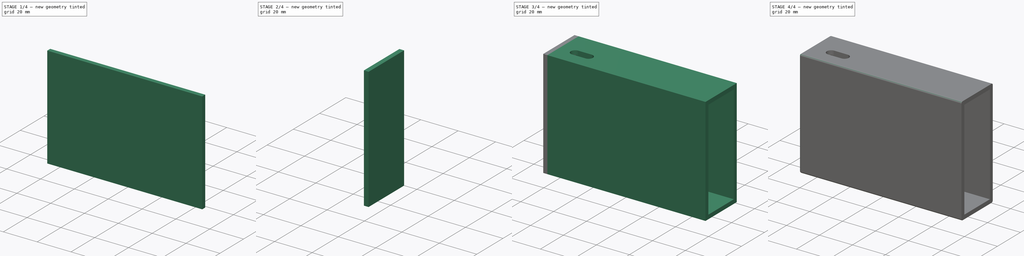
[diagram: build sequence overview — one tinted view per stage of 4, left to right]
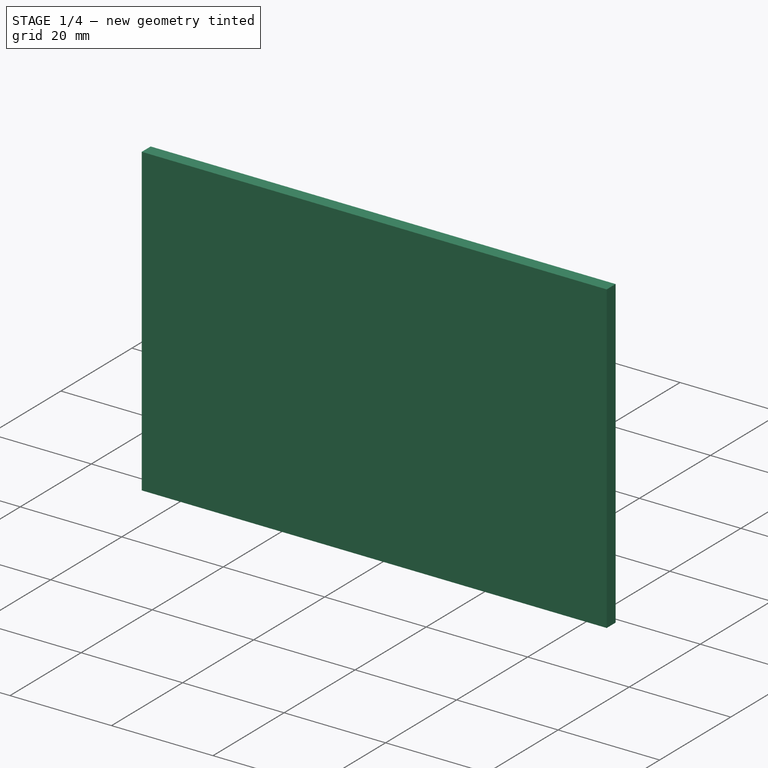
[diagram: stage 1 of 4 — iso view after this stage's code; geometry added in this stage tinted green]
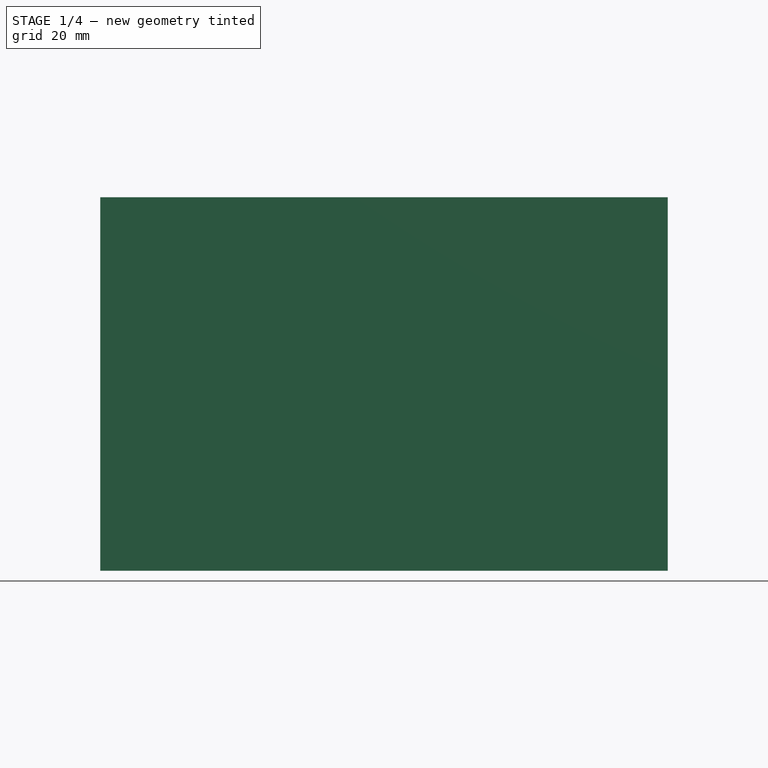
[diagram: stage 1 of 4 — front view after this stage's code; geometry added in this stage tinted green]
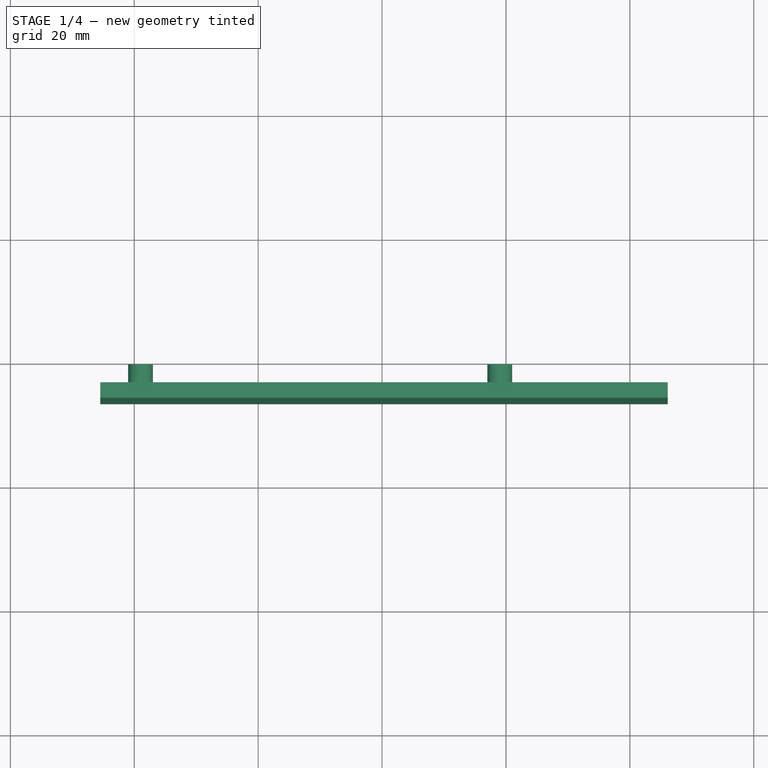
[diagram: stage 1 of 4 — top view after this stage's code; geometry added in this stage tinted green]
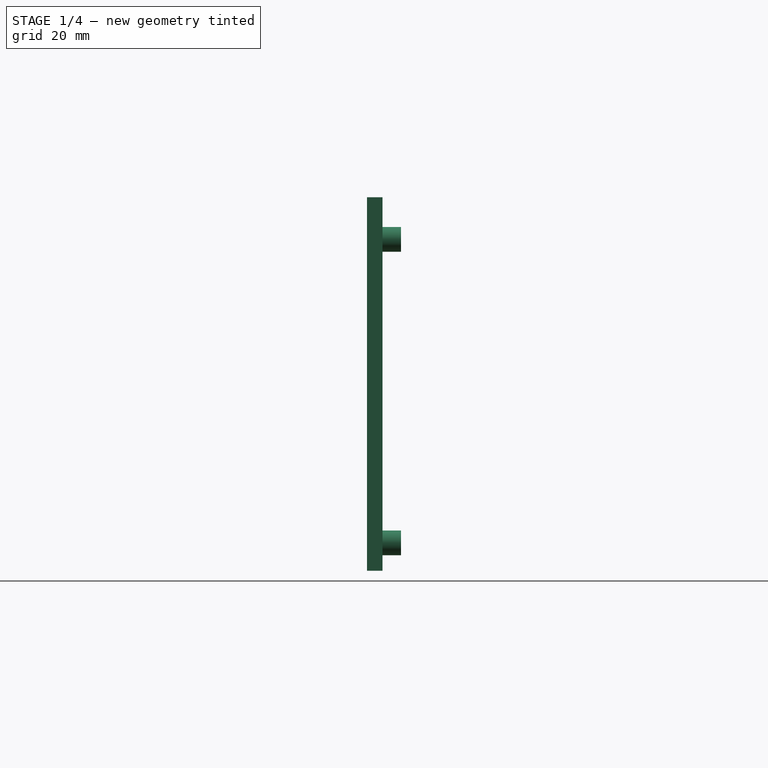
[diagram: stage 1 of 4 — right view after this stage's code; geometry added in this stage tinted green]
FCSTD DOCUMENT  (FreeCAD 0.15R4671 (Git))
Label: PiCaseShell_AllSteps
License: All rights reserved
LicenseURL: http://en.wikipedia.org/wiki/All_rights_reserved
objects: Part::Feature×53, Sketcher::SketchObject×8, PartDesign::Pad×5, PartDesign::Pocket×2, Part::Box×1, Part::Extrusion×1, PartDesign::Fillet×1
note: 78 computed .brp shape members not serialized (recipe doc carries the construction recipe); baked Part::Feature solids carry a one-line shape summary decoded from their .brp

FEATURE [Part::Feature] Part__Feature  label="Mainboard2"
  shape: bbox 85 x 1.3 x 56 mm, 18 faces (baked)
FEATURE [Part::Feature] Part__Feature001  label="GPIO"
  Placement = pos=(-11.37,0,-24.5) rot=(0,-1,0;1.5708rad)
  shape: bbox 50.8 x 11.5 x 5 mm, 684 faces (baked)
FEATURE [Part::Feature] Part__Feature002  label="Processor"
  Placement = pos=(-15.5,0,-3) rot=(0,-1,0;1.5708rad)
  shape: bbox 14 x 1 x 14 mm, 6 faces (baked)
FEATURE [Part::Feature] Part__Feature003  label="GPU"
  Placement = pos=(15.25,0,-5.75) rot=(0,-1,0;1.5708rad)
  shape: bbox 9.1 x 1 x 9.1 mm, 326 faces (baked)
FEATURE [Part::Feature] Part__Feature004  label="CameraAssembly"
  Placement = pos=(10.0885,-2.91588,16.55) rot=(0,1,0;3.14159rad)
  shape: bbox 5 x 5.5 x 20.5 mm, 136 faces, 0 solids (baked)
FEATURE [Part::Feature] Part__Feature005  label="CameraAssembly001"
  Placement = pos=(10.0885,-2.91588,16.55) rot=(0,1,0;3.14159rad)
  shape: bbox 4 x 1 x 22.1 mm, 14 faces, 0 solids (baked)
FEATURE [Part::Feature] Part__Feature006  label="CameraAssembly002"
  Placement = pos=(-46.3885,-2.91588,-9e-12) rot=(0,0,1;0rad)
  shape: bbox 5 x 5.5 x 20.5 mm, 136 faces, 0 solids (baked)
FEATURE [Part::Feature] Part__Feature007  label="CameraAssembly003"
  Placement = pos=(-46.3885,-2.91588,-9e-12) rot=(0,0,1;0rad)
  shape: bbox 4 x 1 x 22.1 mm, 14 faces, 0 solids (baked)
FEATURE [Part::Feature] Part__Feature008  label="HDMI"
  Placement = pos=(-10.2,0.27,29.3) rot=(0,0,1;0rad)
  shape: bbox 14.9 x 5.73 x 10.35 mm, 343 faces (baked)
FEATURE [Part::Feature] Part__Feature009  label="HDMI001"
  Placement = pos=(-10.2,0.27,29.3) rot=(0,0,1;0rad)
  shape: bbox 8.45 x 3.11 x 9.4 mm, 173 faces (baked)
FEATURE [Part::Feature] Part__Feature010  label="HDMI002"
  Placement = pos=(-10.2,0.27,29.3) rot=(0,0,1;0rad)
  shape: bbox 9.45 x 3.81 x 9.4 mm, 192 faces (baked)
FEATURE [Part::Feature] Part__Feature011  label="HDMI003"
  Placement = pos=(-10.2,0.27,29.3) rot=(0,0,1;0rad)
  shape: bbox 15 x 8.38 x 11.55 mm, 287 faces (baked)
FEATURE [Part::Feature] Part__Feature012  label="RAM"
  Placement = pos=(0.5,-2.3,-6) rot=(0,-1,0;1.5708rad)
  shape: bbox 12 x 1 x 12 mm, 6 faces (baked)
FEATURE [Part::Feature] Part__Feature013  label="Audio"
  Placement = pos=(10.9,0.15,21.75) rot=(0,0,1;0rad)
  shape: bbox 7 x 6 x 14.8 mm, 36 faces (baked)
FEATURE [Part::Feature] Part__Feature014  label="Audio001"
  Placement = pos=(10.9,0.15,21.75) rot=(0,0,1;0rad)
  shape: bbox 0.6 x 5.7 x 2.8 mm, 6 faces (baked)
FEATURE [Part::Feature] Part__Feature015  label="Audio002"
  Placement = pos=(10.9,0.15,21.75) rot=(0,0,1;0rad)
  shape: bbox 0.5245 x 5.7 x 8 mm, 6 faces (baked)
FEATURE [Part::Feature] Part__Feature016  label="Audio003"
  Placement = pos=(10.9,0.15,21.75) rot=(0,0,1;0rad)
  shape: bbox 0.6 x 5.7 x 2.8 mm, 6 faces (baked)
FEATURE [Part::Feature] Part__Feature017  label="Audio004"
  Placement = pos=(10.9,0.15,21.75) rot=(0,0,1;0rad)
  shape: bbox 0.5245 x 5.7 x 8 mm, 6 faces (baked)
FEATURE [Part::Feature] Part__Feature018  label="Audio005"
  Placement = pos=(10.9,0.15,21.75) rot=(0,0,1;0rad)
  shape: bbox 3.8 x 5.7 x 6 mm, 16 faces (baked)
FEATURE [Part::Feature] Part__Feature019  label="MicroSDSocket"
  Placement = pos=(-34.5,-1.3,-0.7) rot=(0.707107,0,-0.707107;3.14159rad)
  shape: bbox 14 x 1.3 x 13 mm, 16 faces (baked)
FEATURE [Part::Feature] Part__Feature020  label="MicroSD"
  Placement = pos=(-37,-2.3,0.1) rot=(0,-1,0;1.5708rad)
  shape: bbox 15 x 1.001 x 11.37 mm, 16 faces (baked)
FEATURE [Part::Feature] Part__Feature021  label="micro USB2"
  Placement = pos=(-17.2704,-5.09688,44.9026) rot=(0,0,1;0rad)
  shape: bbox 0.25 x 1.54 x 1.2 mm, 15 faces, 0 solids (baked)
FEATURE [Part::Feature] Part__Feature022  label="micro USB003"
  Placement = pos=(-17.2704,-5.09688,44.9026) rot=(0,0,1;0rad)
  shape: bbox 0.37 x 0.15 x 0.15 mm, 1 faces, 0 solids (baked)
FEATURE [Part::Feature] Part__Feature023  label="micro USB004"
  Placement = pos=(-17.2704,-5.09688,44.9026) rot=(0,0,1;0rad)
  shape: bbox 0.25 x 1.54 x 1.2 mm, 15 faces, 0 solids (baked)
FEATURE [Part::Feature] Part__Feature024  label="micro USB005"
  Placement = pos=(-17.2704,-5.09688,44.9026) rot=(0,0,1;0rad)
  shape: bbox 0.37 x 0.15 x 0.15 mm, 1 faces, 0 solids (baked)
FEATURE [Part::Feature] Part__Feature025  label="micro USB006"
  Placement = pos=(-17.2704,-5.09688,44.9026) rot=(0,0,1;0rad)
  shape: bbox 6.9 x 2.13 x 3.921 mm, 117 faces, 0 solids (baked)
FEATURE [Part::Feature] Part__Feature026  label="micro USB007"
  Placement = pos=(-17.2704,-5.09688,44.9026) rot=(0,0,1;0rad)
  shape: bbox 0.25 x 1.54 x 1.2 mm, 15 faces, 0 solids (baked)
FEATURE [Part::Feature] Part__Feature027  label="micro USB008"
  Placement = pos=(-17.2704,-5.09688,44.9026) rot=(0,0,1;0rad)
  shape: bbox 0.37 x 0.15 x 0.15 mm, 1 faces, 0 solids (baked)
FEATURE [Part::Feature] Part__Feature028  label="micro USB009"
  Placement = pos=(-17.2704,-5.09688,44.9026) rot=(0,0,1;0rad)
  shape: bbox 0.25 x 1.54 x 1.2 mm, 15 faces, 0 solids (baked)
FEATURE [Part::Feature] Part__Feature029  label="micro USB010"
  Placement = pos=(-17.2704,-5.09688,44.9026) rot=(0,0,1;0rad)
  shape: bbox 0.37 x 0.15 x 3.15 mm, 2 faces, 0 solids (baked)
FEATURE [Part::Feature] Part__Feature030  label="micro USB011"
  Placement = pos=(-17.2704,-5.09688,44.9026) rot=(0,0,1;0rad)
  shape: bbox 0.25 x 1.54 x 1.2 mm, 15 faces, 0 solids (baked)
FEATURE [Part::Feature] Part__Feature031  label="micro USB012"
  Placement = pos=(-17.2704,-5.09688,44.9026) rot=(0,0,1;0rad)
  shape: bbox 0.37 x 0.15 x 3.15 mm, 2 faces, 0 solids (baked)
FEATURE [Part::Feature] Part__Feature032  label="micro USB013"
  Placement = pos=(-17.2704,-5.09688,44.9026) rot=(0,0,1;0rad)
  shape: bbox 7.984 x 2.934 x 5.431 mm, 692 faces, 0 solids (baked)
FEATURE [Part::Feature] Part__Feature033  label="usb double"
  Placement = pos=(30.38,-0.09,-18.85) rot=(0,1,0;1.5708rad)
  shape: bbox 17.1 x 14.62 x 13.5 mm, 398 faces (baked)
FEATURE [Part::Feature] Part__Feature034  label="usb double001"
  Placement = pos=(30.38,-0.09,-18.85) rot=(0,1,0;1.5708rad)
  shape: bbox 16.2 x 15.19 x 12.9 mm, 91 faces (baked)
FEATURE [Part::Feature] Part__Feature035  label="usb double002"
  Placement = pos=(30.38,-0.09,-18.85) rot=(0,1,0;1.5708rad)
  shape: bbox 12.74 x 15.73 x 8 mm, 182 faces (baked)
FEATURE [Part::Feature] Part__Feature036  label="usb double003"
  Placement = pos=(30.38,-0.09,-18.85) rot=(0,1,0;1.5708rad)
  shape: bbox 17.92 x 18.65 x 15.6 mm, 277 faces (baked)
FEATURE [Part::Feature] Part__Feature037  label="usb double004"
  Placement = pos=(30.38,-0.09,-1.25) rot=(0,1,0;1.5708rad)
  shape: bbox 17.1 x 14.62 x 13.5 mm, 398 faces (baked)
FEATURE [Part::Feature] Part__Feature038  label="usb double005"
  Placement = pos=(30.38,-0.09,-1.25) rot=(0,1,0;1.5708rad)
  shape: bbox 16.2 x 15.19 x 12.9 mm, 91 faces (baked)
FEATURE [Part::Feature] Part__Feature039  label="usb double006"
  Placement = pos=(30.38,-0.09,-1.25) rot=(0,1,0;1.5708rad)
  shape: bbox 12.74 x 15.73 x 8 mm, 182 faces (baked)
FEATURE [Part::Feature] Part__Feature040  label="usb double007"
  Placement = pos=(30.38,-0.09,-1.25) rot=(0,1,0;1.5708rad)
  shape: bbox 17.92 x 18.65 x 15.6 mm, 277 faces (baked)
FEATURE [Part::Feature] Part__Feature041  label="RJ45-LED"
  Placement = pos=(34.11,7.4,17.348) rot=(1,0,0;1.5708rad)
  shape: bbox 20.75 x 14.09 x 17.99 mm, 356 faces, 0 solids (baked)
FEATURE [Part::Feature] Part__Feature042  label="RJ45-LED001"
  Placement = pos=(34.11,7.4,17.348) rot=(1,0,0;1.5708rad)
  shape: bbox 20.08 x 12.39 x 15.26 mm, 45 faces, 0 solids (baked)
FEATURE [Part::Feature] Part__Feature043  label="RJ45-LED002"
  Placement = pos=(34.11,7.4,17.348) rot=(1,0,0;1.5708rad)
  shape: bbox 8.21 x 4.343 x 0.5005 mm, 22 faces, 0 solids (baked)
FEATURE [Part::Feature] Part__Feature044  label="RJ45-LED003"
  Placement = pos=(34.11,7.4,17.348) rot=(1,0,0;1.5708rad)
  shape: bbox 8.21 x 4.343 x 0.5005 mm, 24 faces, 0 solids (baked)
FEATURE [Part::Feature] Part__Feature045  label="RJ45-LED004"
  Placement = pos=(34.11,7.4,17.348) rot=(1,0,0;1.5708rad)
  shape: bbox 8.211 x 4.244 x 0.5015 mm, 24 faces, 0 solids (baked)
FEATURE [Part::Feature] Part__Feature046  label="RJ45-LED005"
  Placement = pos=(34.11,7.4,17.348) rot=(1,0,0;1.5708rad)
  shape: bbox 8.211 x 4.244 x 0.5015 mm, 19 faces, 0 solids (baked)
FEATURE [Part::Feature] Part__Feature047  label="RJ45-LED006"
  Placement = pos=(34.11,7.4,17.348) rot=(1,0,0;1.5708rad)
  shape: bbox 8.21 x 4.343 x 0.5005 mm, 23 faces, 0 solids (baked)
FEATURE [Part::Feature] Part__Feature048  label="RJ45-LED007"
  Placement = pos=(34.11,7.4,17.348) rot=(1,0,0;1.5708rad)
  shape: bbox 8.211 x 4.344 x 0.5015 mm, 26 faces, 0 solids (baked)
FEATURE [Part::Feature] Part__Feature049  label="RJ45-LED008"
  Placement = pos=(34.11,7.4,17.348) rot=(1,0,0;1.5708rad)
  shape: bbox 8.211 x 4.244 x 0.5015 mm, 23 faces, 0 solids (baked)
FEATURE [Part::Feature] Part__Feature050  label="RJ45-LED009"
  Placement = pos=(34.11,7.4,17.348) rot=(1,0,0;1.5708rad)
  shape: bbox 8.21 x 4.243 x 0.5 mm, 19 faces, 0 solids (baked)
FEATURE [Part::Feature] Part__Feature051  label="RJ45-LED010"
  Placement = pos=(34.11,7.4,17.348) rot=(1,0,0;1.5708rad)
  shape: bbox 2e-07 x 2.15 x 3.2 mm, 1 faces, 0 solids (baked)
FEATURE [Part::Feature] Part__Feature052  label="RJ45-LED011"
  Placement = pos=(34.11,7.4,17.348) rot=(1,0,0;1.5708rad)
  shape: bbox 2e-07 x 2.15 x 3.2 mm, 1 faces, 0 solids (baked)
FEATURE [Part::Box] Box  label="slider"
  Height = 60.3
  Length = 91.62
  Placement = pos=(-45.5,-6.5,-29) rot=(0,0,1;0rad)
  Width = 2.5
FEATURE [Sketcher::SketchObject] Sketch
  ExternalGeometry = -> [Part__Feature]
  Placement = pos=(-45.5,-4,-29) rot=(0,0.707107,0.707107;3.14159rad)
  Support = -> Box [Face4]
  sketch-geometry (4):
    g0: Circle CenterX=-6.5 CenterY=4.5 CenterZ=0 NormalX=0 NormalY=0 NormalZ=1 Radius=2
    g1: Circle CenterX=-64.5 CenterY=4.5 CenterZ=0 NormalX=0 NormalY=0 NormalZ=1 Radius=2
    g2: Circle CenterX=-64.5 CenterY=53.5 CenterZ=0 NormalX=0 NormalY=0 NormalZ=1 Radius=2
    g3: Circle CenterX=-6.5 CenterY=53.5 CenterZ=0 NormalX=0 NormalY=0 NormalZ=1 Radius=2
  constraints (8):
    c: Coincident(g0,g-6)
    c: Coincident(g1,g-5)
    c: Coincident(g2,g-4)
    c: Coincident(g3,g-3)
    c: Radius(g3) = 2
    c: Radius(g0) = 2
    c: Radius(g1) = 2
    c: Radius(g2) = 2
FEATURE [PartDesign::Pad] Pad
  Length = 3
  Length2 = 100
  Placement = pos=(-45.5,-6.5,-29) rot=(0,0,1;0rad)
  Sketch = -> Sketch
  Type = 0
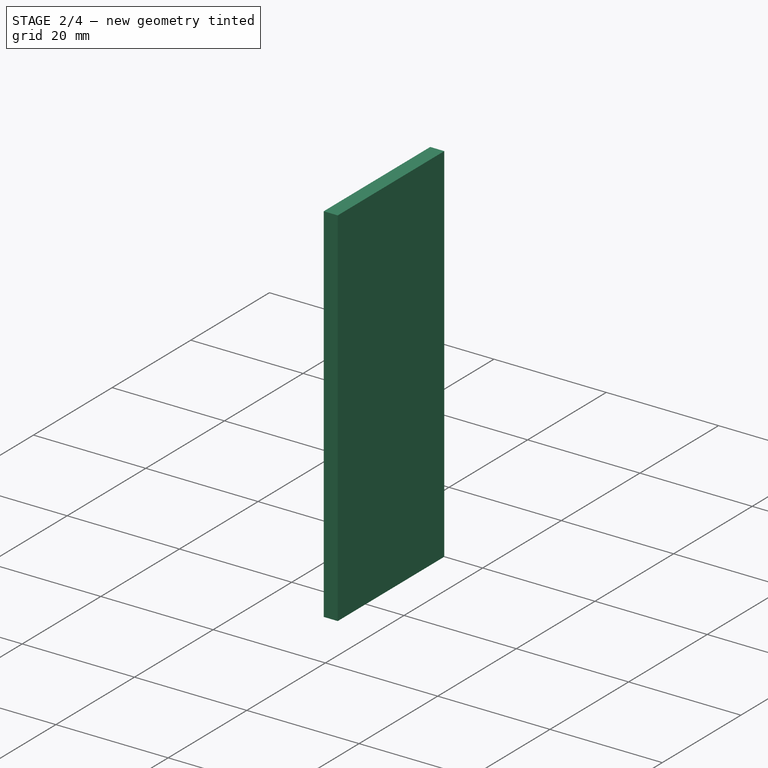
[diagram: stage 2 of 4 — iso view after this stage's code; geometry added in this stage tinted green]
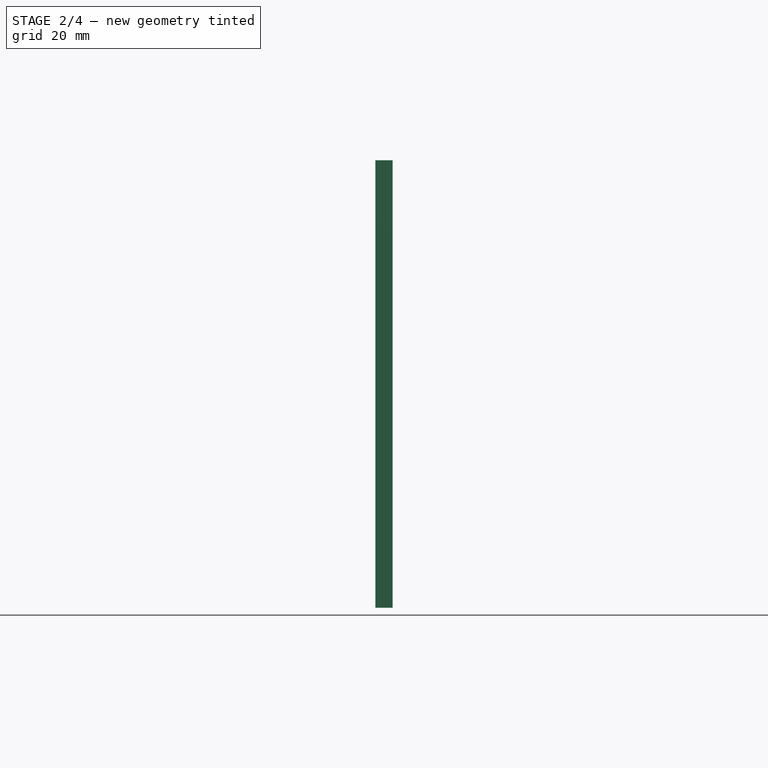
[diagram: stage 2 of 4 — front view after this stage's code; geometry added in this stage tinted green]
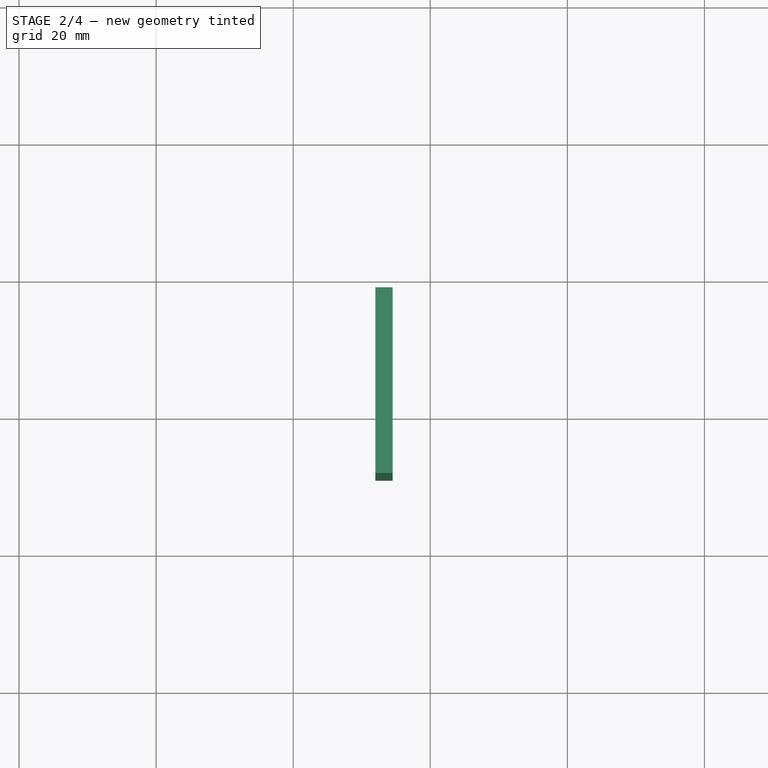
[diagram: stage 2 of 4 — top view after this stage's code; geometry added in this stage tinted green]
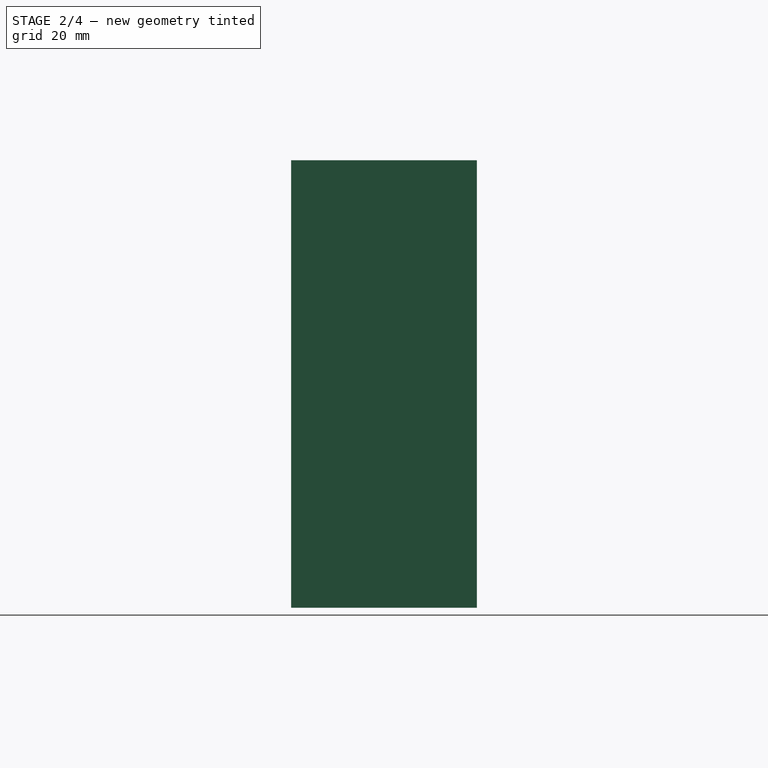
[diagram: stage 2 of 4 — right view after this stage's code; geometry added in this stage tinted green]
FEATURE [Sketcher::SketchObject] Sketch001
  ExternalGeometry = -> [Pad]
  Placement = pos=(46.12,-6.5,-29) rot=(0.57735,0.57735,0.57735;2.0944rad)
  Support = -> Pad [Face6]
  sketch-geometry (8):
    g0: LineSegment StartX=0 StartY=60.3 StartZ=0 EndX=22.1 EndY=60.3 EndZ=0
    g1: LineSegment StartX=22.1 StartY=60.3 StartZ=0 EndX=22.1 EndY=0 EndZ=0
    g2: LineSegment StartX=22.1 StartY=0 StartZ=0 EndX=0 EndY=0 EndZ=0
    g3: LineSegment StartX=0 StartY=0 StartZ=0 EndX=0 EndY=60.3 EndZ=0
    g4: LineSegment StartX=6.5 StartY=54.5 StartZ=0 EndX=20.5 EndY=54.5 EndZ=0
    g5: LineSegment StartX=20.5 StartY=54.5 StartZ=0 EndX=20.5 EndY=38.196 EndZ=0
    g6: LineSegment StartX=20.5 StartY=38.196 StartZ=0 EndX=6.5 EndY=38.196 EndZ=0
    g7: LineSegment StartX=6.5 StartY=38.196 StartZ=0 EndX=6.5 EndY=54.5 EndZ=0
  constraints (23):
    c: Coincident(g0,g1)
    c: Coincident(g1,g2)
    c: Coincident(g2,g3)
    c: Coincident(g3,g0)
    c: Horizontal(g0)
    c: Horizontal(g2)
    c: Vertical(g1)
    c: Vertical(g3)
    c: Distance(g2) = 22.1
    c: Coincident(g0,g-3)
    c: Coincident(g2,g-1)
    c: Coincident(g4,g5)
    c: Coincident(g5,g6)
    c: Coincident(g6,g7)
    c: Coincident(g7,g4)
    c: Horizontal(g4)
    c: Horizontal(g6)
    c: Vertical(g5)
    c: Vertical(g7)
    c: Distance(g6) = 14
    c: Distance(g4,g0) = 5.8
    c: Distance(g6,g2) = 38.196
    c: Distance(g6,g-3) = 6.5
FEATURE [PartDesign::Pad] Pad001
  Length = 2.5
  Length2 = 100
  Placement = pos=(-45.5,-6.5,-29) rot=(0,0,1;0rad)
  Sketch = -> Sketch001
  Type = 0
FEATURE [Sketcher::SketchObject] Sketch002
  ExternalGeometry = -> [Pad001]
  Placement = pos=(-45.5,-1,-29) rot=(0,0.707107,0.707107;3.14159rad)
  Support = -> Pad001 [Face22]
  sketch-geometry (4):
    g0: Circle CenterX=-64.5 CenterY=4.5 CenterZ=0 NormalX=0 NormalY=0 NormalZ=1 Radius=1.1
    g1: Circle CenterX=-64.5 CenterY=53.5 CenterZ=0 NormalX=0 NormalY=0 NormalZ=1 Radius=1.1
    g2: Circle CenterX=-6.5 CenterY=53.5 CenterZ=0 NormalX=0 NormalY=0 NormalZ=1 Radius=1.1
    g3: Circle CenterX=-6.5 CenterY=4.5 CenterZ=0 NormalX=0 NormalY=0 NormalZ=1 Radius=1.1
  constraints (8):
    c: Coincident(g0,g-3)
    c: Coincident(g1,g-6)
    c: Coincident(g2,g-5)
    c: Coincident(g3,g-4)
    c: Equal(g0,g1)
    c: Equal(g0,g2)
    c: Equal(g0,g3)
    c: Radius(g0) = 1.1
FEATURE [PartDesign::Pad] Pad002  label="slider_final"
  Length = 2.5
  Length2 = 100
  Placement = pos=(-45.5,-6.5,-29) rot=(0,0,1;0rad)
  Sketch = -> Sketch002
  Type = 0
FEATURE [Sketcher::SketchObject] Sketch003
  ExternalGeometry = -> [Pad002]
  Placement = pos=(-45.5,-6.5,-29) rot=(0.57735,-0.57735,-0.57735;2.0944rad)
  Support = -> Pad002 [Face1]
  sketch-geometry (4):
    g0: LineSegment StartX=-24.6 StartY=62.8 StartZ=0 EndX=2.5 EndY=62.8 EndZ=0
    g1: LineSegment StartX=2.5 StartY=62.8 StartZ=0 EndX=2.5 EndY=-2.5 EndZ=0
    g2: LineSegment StartX=2.5 StartY=-2.5 StartZ=0 EndX=-24.6 EndY=-2.5 EndZ=0
    g3: LineSegment StartX=-24.6 StartY=-2.5 StartZ=0 EndX=-24.6 EndY=62.8 EndZ=0
  constraints (12):
    c: Coincident(g0,g1)
    c: Coincident(g1,g2)
    c: Coincident(g2,g3)
    c: Coincident(g3,g0)
    c: Horizontal(g0)
    c: Horizontal(g2)
    c: Vertical(g1)
    c: Vertical(g3)
    c: Distance(g2) = 27.1
    c: Distance(g-1,g1) = 2.5
    c: Distance(g-4,g0) = 2.5
    c: Distance(g-6,g2) = 2.5
FEATURE [Part::Extrusion] Extrude002
  Base = -> Sketch003
  Dir = (-2.5,0,0)
  Solid = true
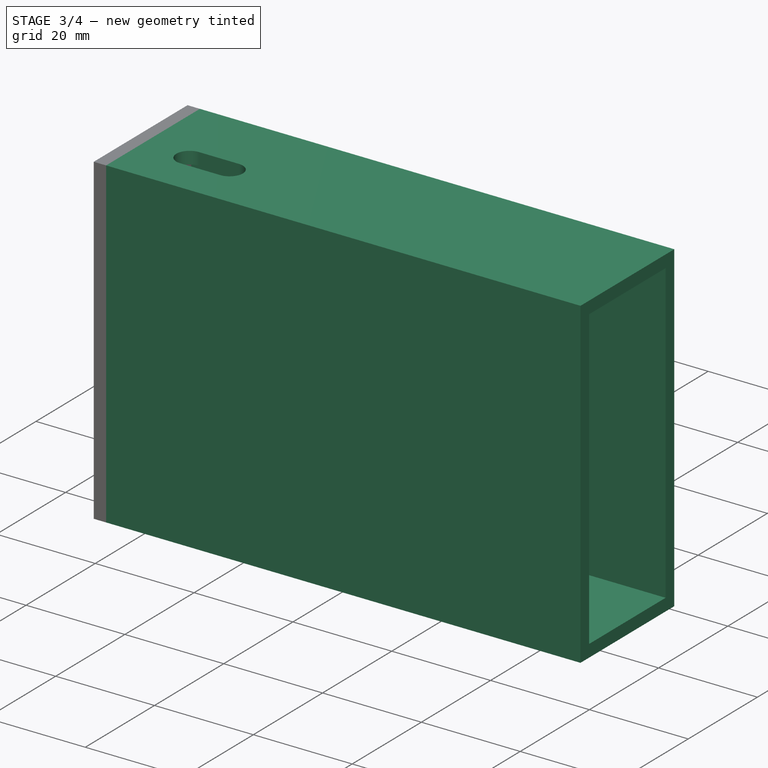
[diagram: stage 3 of 4 — iso view after this stage's code; geometry added in this stage tinted green]
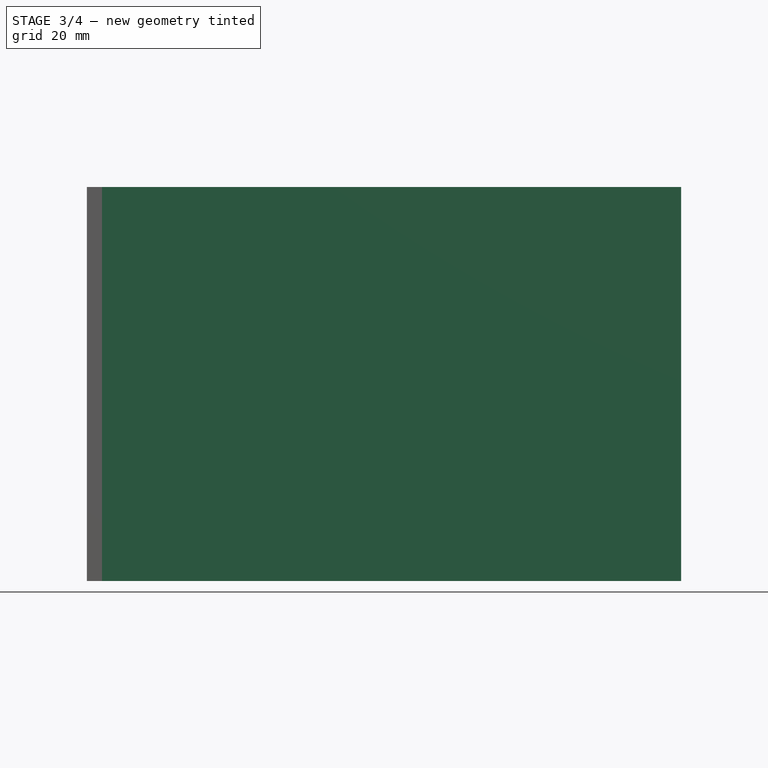
[diagram: stage 3 of 4 — front view after this stage's code; geometry added in this stage tinted green]
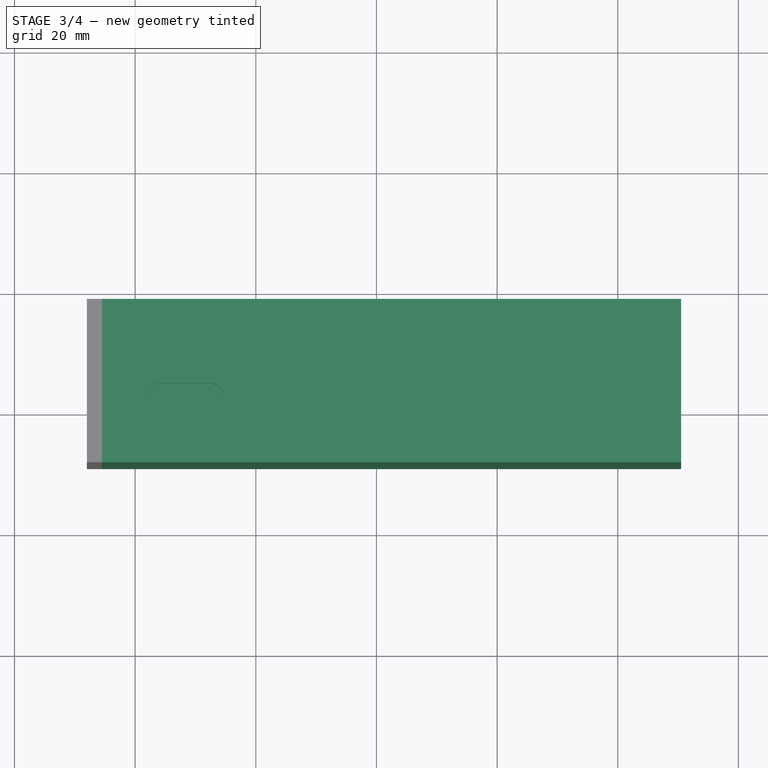
[diagram: stage 3 of 4 — top view after this stage's code; geometry added in this stage tinted green]
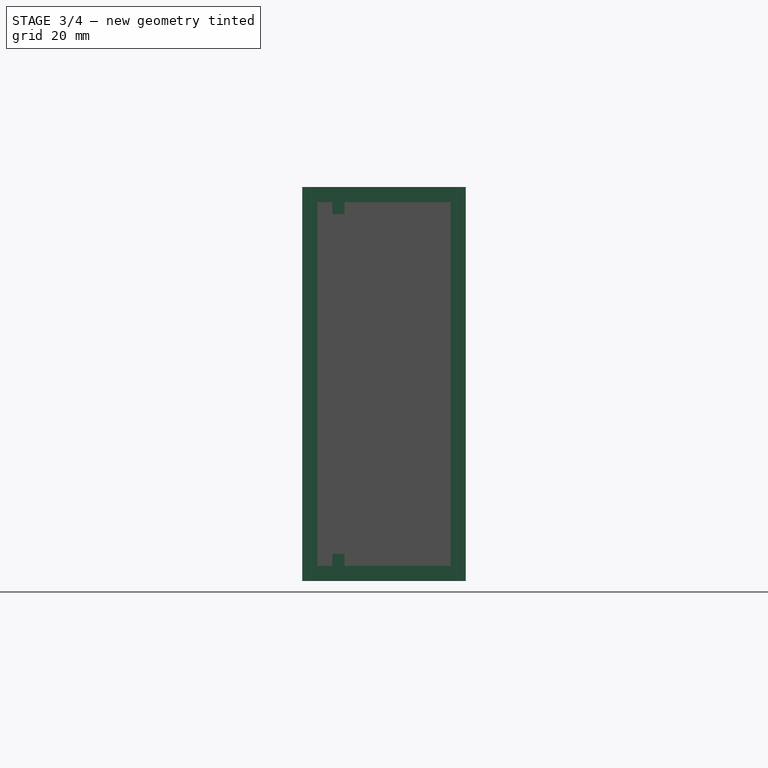
[diagram: stage 3 of 4 — right view after this stage's code; geometry added in this stage tinted green]
FEATURE [Sketcher::SketchObject] Sketch004
  ExternalGeometry = -> [Extrude002]
  Placement = pos=(-45.5,0,0) rot=(0.57735,0.57735,0.57735;2.0944rad)
  Support = -> Extrude002 [Face5]
  sketch-geometry (8):
    g0: LineSegment StartX=-4 StartY=-27 StartZ=0 EndX=-2 EndY=-27 EndZ=0
    g1: LineSegment StartX=-2 StartY=-27 StartZ=0 EndX=-2 EndY=-29 EndZ=0
    g2: LineSegment StartX=-2 StartY=-29 StartZ=0 EndX=-4 EndY=-29 EndZ=0
    g3: LineSegment StartX=-4 StartY=-29 StartZ=0 EndX=-4 EndY=-27 EndZ=0
    g4: LineSegment StartX=-4 StartY=31.3 StartZ=0 EndX=-2 EndY=31.3 EndZ=0
    g5: LineSegment StartX=-2 StartY=31.3 StartZ=0 EndX=-2 EndY=29.3 EndZ=0
    g6: LineSegment StartX=-2 StartY=29.3 StartZ=0 EndX=-4 EndY=29.3 EndZ=0
    g7: LineSegment StartX=-4 StartY=29.3 StartZ=0 EndX=-4 EndY=31.3 EndZ=0
  constraints (24):
    c: Coincident(g0,g1)
    c: Coincident(g1,g2)
    c: Coincident(g2,g3)
    c: Coincident(g3,g0)
    c: Horizontal(g0)
    c: Horizontal(g2)
    c: Vertical(g1)
    c: Vertical(g3)
    c: Coincident(g4,g5)
    c: Coincident(g5,g6)
    c: Coincident(g6,g7)
    c: Coincident(g7,g4)
    c: Horizontal(g4)
    c: Horizontal(g6)
    c: Vertical(g5)
    c: Vertical(g7)
    c: Equal(g6,g0)
    c: Equal(g3,g7)
    c: Distance(g4,g-3) = 2.5
    c: Distance(g4,g-6) = 5
    c: Distance(g2,g-5) = 2.5
    c: Distance(g2,g-6) = 5
    c: Distance(g1) = 2
    c: Distance(g0) = 2
FEATURE [PartDesign::Pad] Pad003
  Length = 90
  Length2 = 100
  Sketch = -> Sketch004
  Type = 0
FEATURE [Sketcher::SketchObject] Sketch005
  ExternalGeometry = -> [Pad003]
  Placement = pos=(-45.5,0,0) rot=(0.57735,0.57735,0.57735;2.0944rad)
  Support = -> Pad003 [Face4]
  sketch-geometry (8):
    g0: LineSegment StartX=-9 StartY=33.8 StartZ=0 EndX=18.1 EndY=33.8 EndZ=0
    g1: LineSegment StartX=18.1 StartY=33.8 StartZ=0 EndX=18.1 EndY=-31.5 EndZ=0
    g2: LineSegment StartX=18.1 StartY=-31.5 StartZ=0 EndX=-9 EndY=-31.5 EndZ=0
    g3: LineSegment StartX=-9 StartY=-31.5 StartZ=0 EndX=-9 EndY=33.8 EndZ=0
    g4: LineSegment StartX=-6.5 StartY=31.3 StartZ=0 EndX=15.6 EndY=31.3 EndZ=0
    g5: LineSegment StartX=15.6 StartY=31.3 StartZ=0 EndX=15.6 EndY=-29 EndZ=0
    g6: LineSegment StartX=15.6 StartY=-29 StartZ=0 EndX=-6.5 EndY=-29 EndZ=0
    g7: LineSegment StartX=-6.5 StartY=-29 StartZ=0 EndX=-6.5 EndY=31.3 EndZ=0
  constraints (23):
    c: Coincident(g0,g1)
    c: Coincident(g1,g2)
    c: Coincident(g2,g3)
    c: Coincident(g3,g0)
    c: Horizontal(g0)
    c: Horizontal(g2)
    c: Vertical(g1)
    c: Vertical(g3)
    c: Coincident(g4,g5)
    c: Coincident(g5,g6)
    c: Coincident(g6,g7)
    c: Coincident(g7,g4)
    c: Horizontal(g4)
    c: Horizontal(g6)
    c: Vertical(g5)
    c: Vertical(g7)
    c: Coincident(g0,g-4)
    c: Coincident(g0,g-5)
    c: Coincident(g1,g-6)
    c: Distance(g6,g-6) = 2.5
    c: Distance(g5,g-3) = 2.5
    c: Distance(g6,g-5) = 2.5
    c: Distance(g4,g-4) = 2.5
FEATURE [PartDesign::Pad] Pad004
  Length = 96
  Length2 = 100
  Sketch = -> Sketch005
  Type = 0
FEATURE [Sketcher::SketchObject] Sketch006
  ExternalGeometry = -> [Pad004]
  Placement = pos=(0,0,33.8) rot=(0,0,1;0rad)
  Support = -> Pad004 [Face6]
  sketch-geometry (4):
    g0: ArcOfCircle CenterX=-35.9055 CenterY=1.43407 CenterZ=0 NormalX=0 NormalY=0 NormalZ=1 Radius=2.68343 StartAngle=1.5708 EndAngle=4.71239
    g1: ArcOfCircle CenterX=-27.8154 CenterY=1.43407 CenterZ=0 NormalX=0 NormalY=0 NormalZ=1 Radius=2.68343 StartAngle=4.71239 EndAngle=7.85398
    g2: LineSegment StartX=-35.9055 StartY=-1.24936 StartZ=0 EndX=-27.8154 EndY=-1.24936 EndZ=0
    g3: LineSegment StartX=-35.9055 StartY=4.1175 StartZ=0 EndX=-27.8154 EndY=4.1175 EndZ=0
  constraints (10):
    c: Tangent(g0,g3) = 1.5708
    c: Tangent(g0,g2) = -1.5708
    c: Tangent(g2,g1) = -1.5708
    c: Tangent(g3,g1) = 1.5708
    c: Horizontal(g2)
    c: Equal(g0,g1)
    c: Radius(g1) = 2.68343
    c: Distance(g0,g-3) = 13.9825
    c: Distance(g0,g-6) = 9.59452
    c: Distance(g1,g-4) = 78.3154
FEATURE [PartDesign::Pocket] Pocket
  Length = 5
  Sketch = -> Sketch006
  Type = 2
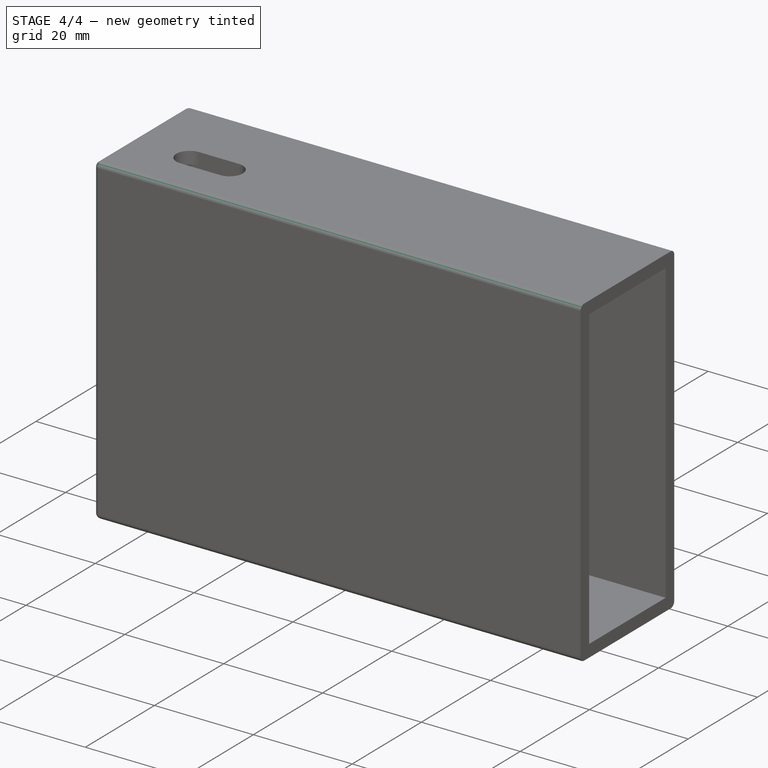
[diagram: stage 4 of 4 — iso view after this stage's code; geometry added in this stage tinted green]
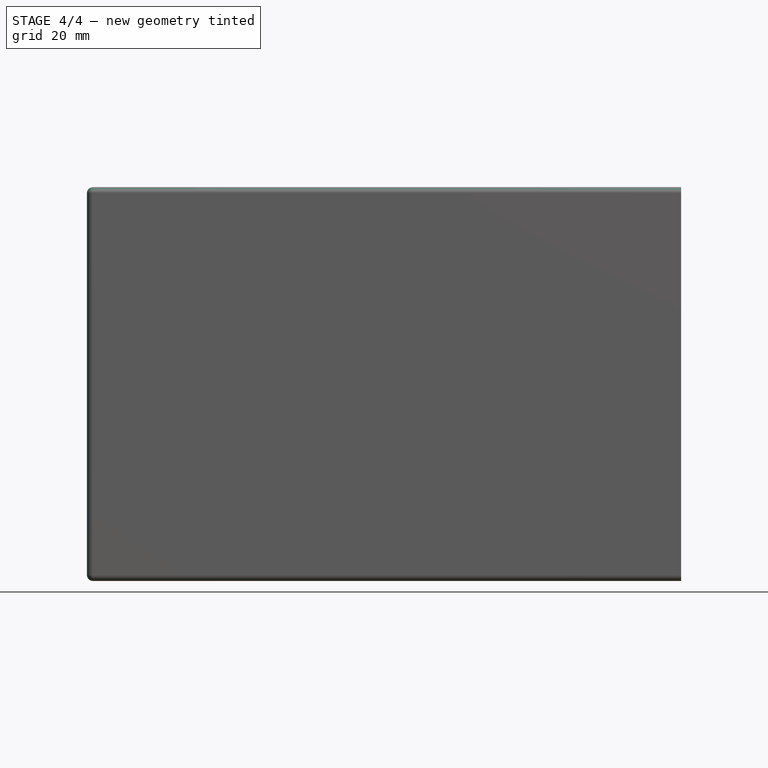
[diagram: stage 4 of 4 — front view after this stage's code; geometry added in this stage tinted green]
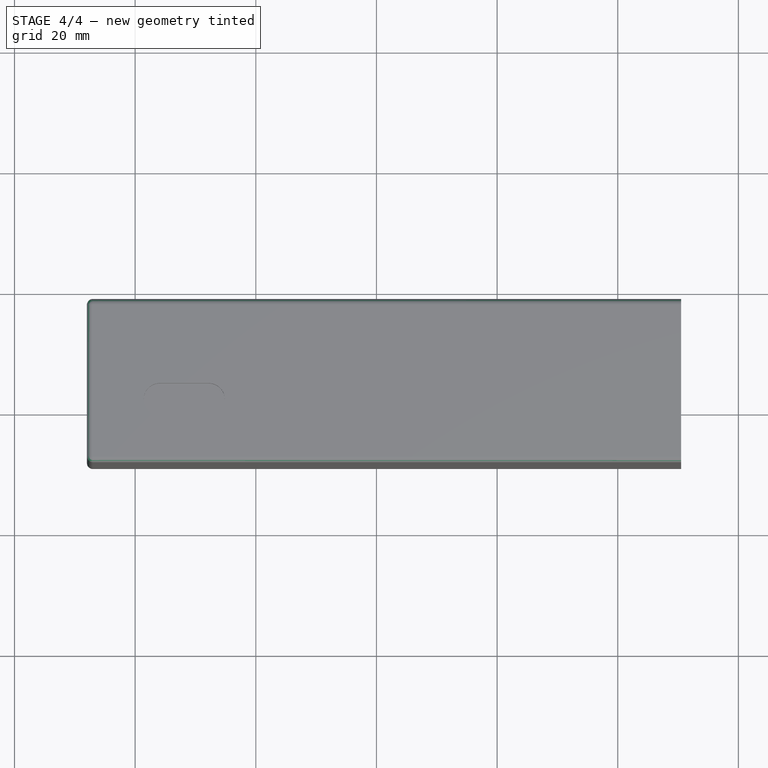
[diagram: stage 4 of 4 — top view after this stage's code; geometry added in this stage tinted green]
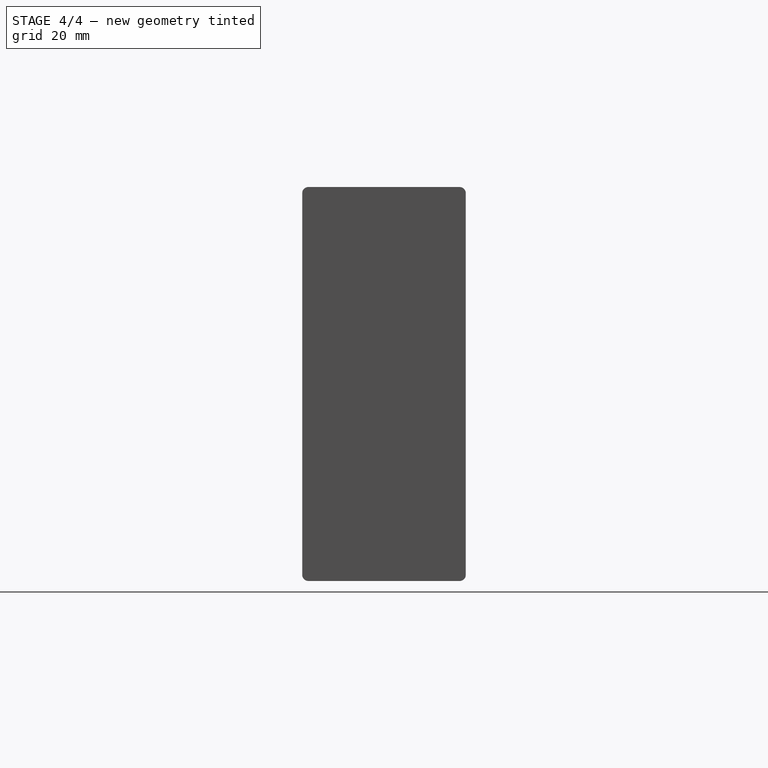
[diagram: stage 4 of 4 — right view after this stage's code; geometry added in this stage tinted green]
FEATURE [Sketcher::SketchObject] Sketch007
  ExternalGeometry = -> [Pocket]
  Placement = pos=(0,18.1,0) rot=(0,0.707107,0.707107;3.14159rad)
  Support = -> Pocket [Face9]
  sketch-geometry (4):
    g0: ArcOfCircle CenterX=22.1471 CenterY=-24.468 CenterZ=0 NormalX=0 NormalY=0 NormalZ=1 Radius=3.3413 StartAngle=1.5708 EndAngle=4.71239
    g1: ArcOfCircle CenterX=33.8994 CenterY=-24.468 CenterZ=0 NormalX=0 NormalY=0 NormalZ=1 Radius=3.3413 StartAngle=4.71239 EndAngle=7.85398
    g2: LineSegment StartX=22.1471 StartY=-27.8093 StartZ=0 EndX=33.8994 EndY=-27.8093 EndZ=0
    g3: LineSegment StartX=22.1471 StartY=-21.1267 StartZ=0 EndX=33.8994 EndY=-21.1267 EndZ=0
  constraints (10):
    c: Tangent(g0,g3) = 1.5708
    c: Tangent(g0,g2) = -1.5708
    c: Tangent(g2,g1) = -1.5708
    c: Tangent(g3,g1) = 1.5708
    c: Horizontal(g2)
    c: Equal(g0,g1)
    c: Radius(g1) = 3.3413
    c: Distance(g1,g-4) = 3.69068
    c: Distance(g1,g-3) = 11.6006
    c: Distance(g0,g-6) = 72.6471
FEATURE [PartDesign::Pocket] Pocket001
  Length = 5
  Sketch = -> Sketch007
  Type = 2
FEATURE [PartDesign::Fillet] Fillet  label="cover_final"
  Base = -> Pocket001 [Edge13,Edge20,Edge9,Edge7,Edge2,Edge1,Edge4,Edge3,Edge15,Edge5,Edge11,Edge22]
  Radius = 1
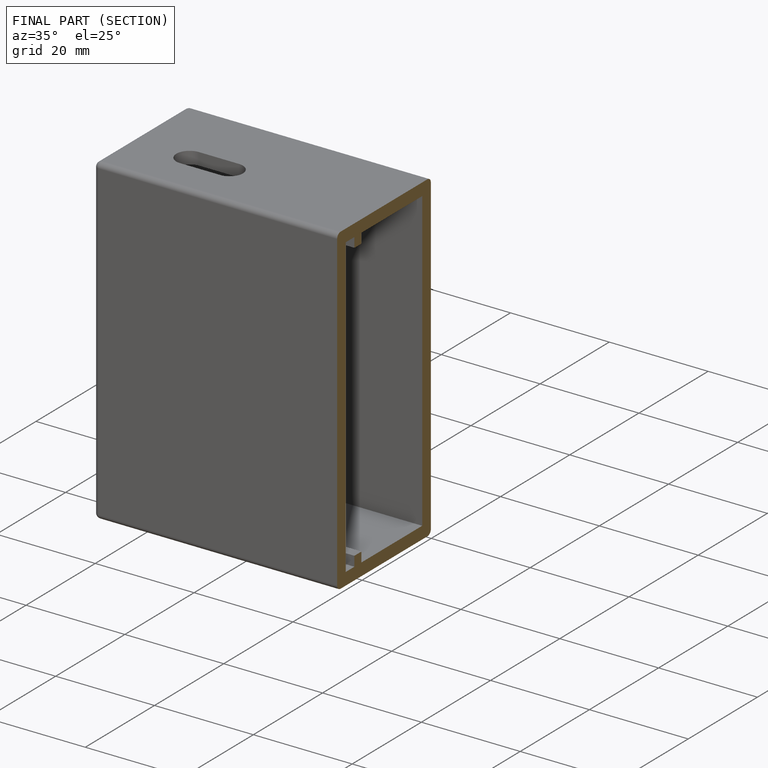
[diagram: finished part — half-section view (interior)]
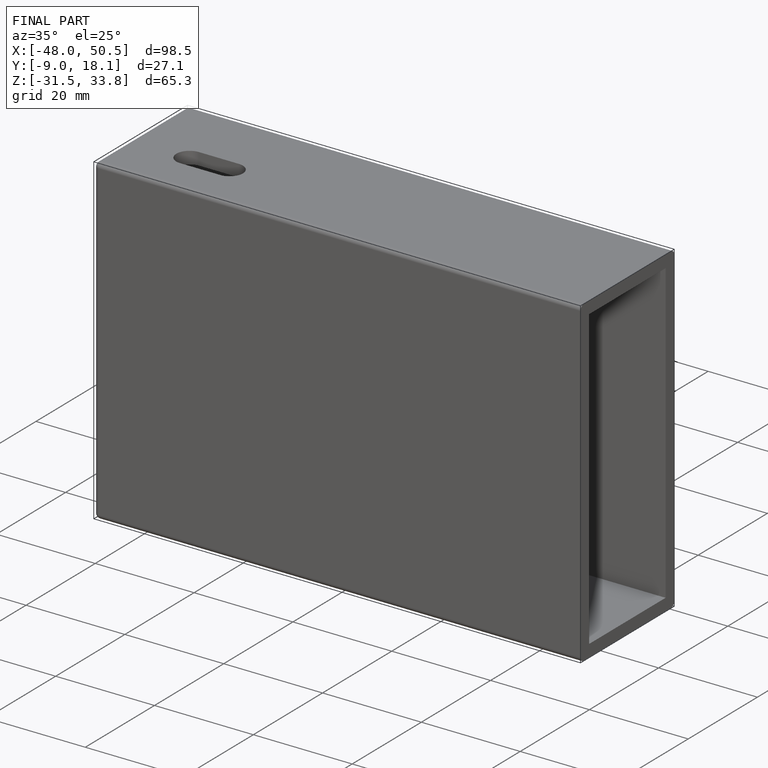
[diagram: finished part — iso view with bounding-box wireframe]
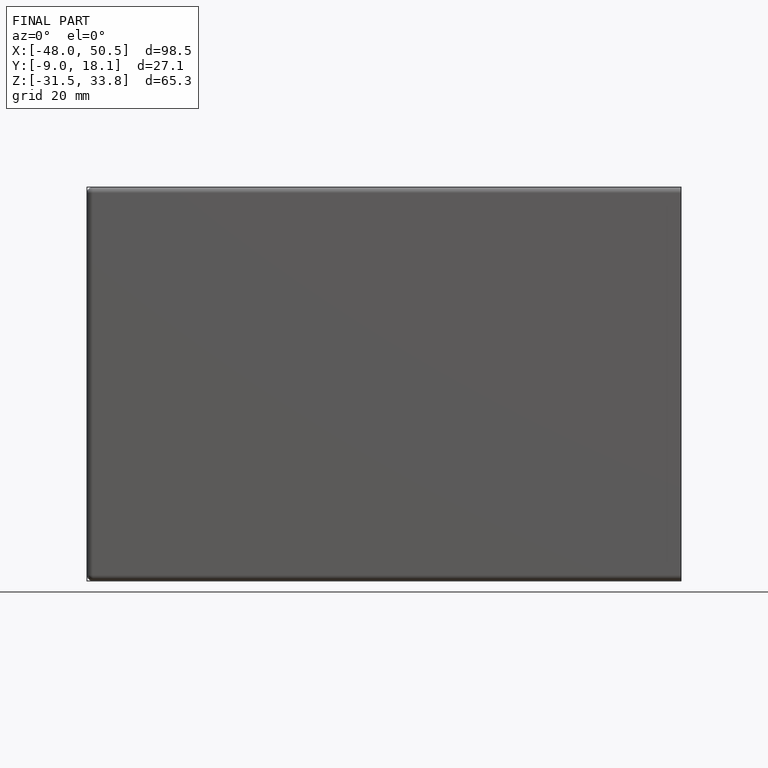
[diagram: finished part — front view with bounding-box wireframe]
